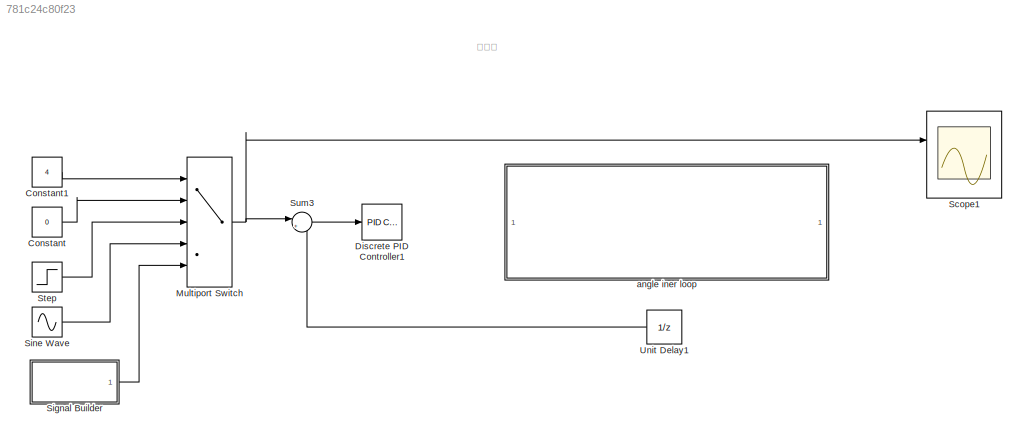
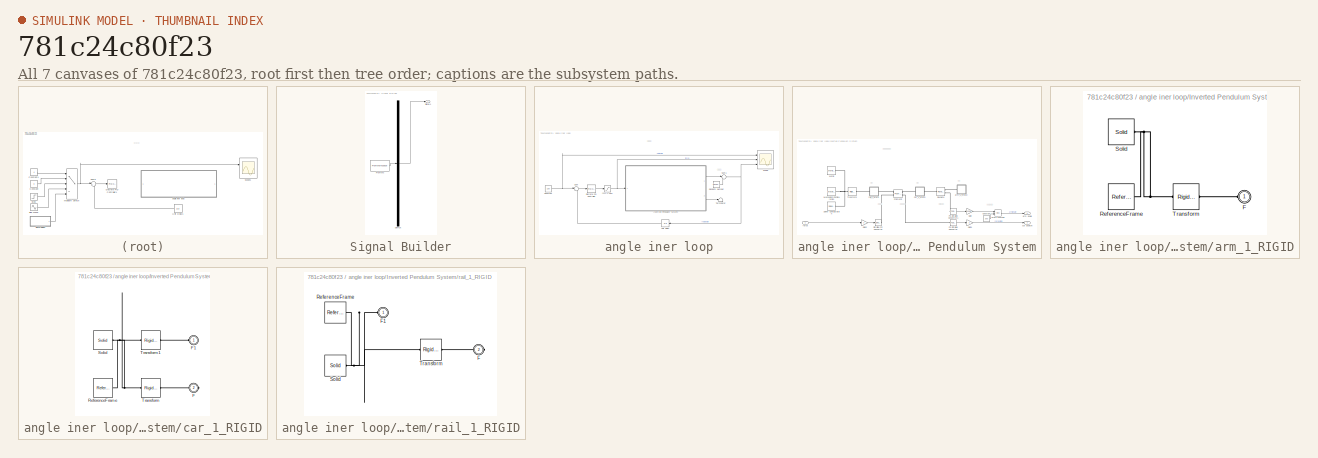
[diagram: thumbnail index - all 7 canvases of the model, root first then tree order]
MODEL slx_781c24c80f23
KIND model
CONFIG AbsTol = auto
CONFIG EnableMultiTasking = off
CONFIG FixedStep = 0.001
CONFIG MaxStep = auto
CONFIG MinStep = auto
CONFIG RelTol = 1e-3
CONFIG SampleTimeConstraint = Unconstrained
CONFIG Solver = ode5
CONFIG SolverName = ode5
CONFIG StartTime = 0.0
CONFIG StopTime = 10
WORKSPACE source: external: MATLAB File  (data not in archive)
BLOCK [Constant] Constant
  Value = 0
BLOCK [Constant] Constant1
  Value = 4
BLOCK [Reference] Discrete PID Controller1  REF=simulink/Continuous/PID Controller
  Ports = [1, 1]
  SourceBlock = simulink/Continuous/PID Controller
  SourceProductBaseCode = SL
  SourceProductName = Simulink
  SourceType = PID 1dof
BLOCK [MultiPortSwitch] Multiport Switch
  InputSameDT = off
  Inputs = 4
  Ports = [5, 1]
  SaturateOnIntegerOverflow = off
BLOCK [Scope] Scope1
  NumInputPorts = 2
  Ports = [2]
  ScopeSpecificationString = Simulink.scopes.TimeScopeBlockCfg('CurrentConfiguration', extmgr.ConfigurationSet(extmgr.Configuration('Core','General UI',true),extmgr.Configuration('Core','Source UI',true),extmgr.Configuration('Sources','WiredSimulink',true,'DataLoggingVariableName','ScopeData1'),extmgr.Configuration('Visuals','Time Domain',true,'SerializedDisplays',{struct('MinYLimReal','-0.02675','MaxYLimReal','0.23075','YLab...<+1996ch>
BLOCK [SubSystem] Signal Builder
  ClipboardFcn = sigbuilder_block('clipboard');
  CloseFcn = sigbuilder_block('close');
  ContinueFcn = sigbuilder_block('continue');
  CopyFcn = sigbuilder_block('copy');
  DeleteFcn = sigbuilder_block('delete');
  LoadFcn = sigbuilder_block('load');
  MaskHideContents = on
  ModelCloseFcn = sigbuilder_block('modelClose');
  NameChangeFcn = sigbuilder_block('namechange');
  OpenFcn = sigbuilder_block('open',[437.6 199.2 550.4 400 ]);
  PauseFcn = sigbuilder_block('pause');
  Ports = [0, 1]
  PreSaveFcn = sigbuilder_block('preSave');
  RequestExecContextInheritance = off
  StartFcn = sigbuilder_block('start');
  StopFcn = sigbuilder_block('stop');
  Tag = STV Subsys
  Variant = off
BLOCK [Demux] Signal Builder/Demux
  Outputs = 1
  Ports = [1, 1]
  Tag = STV Demux
BLOCK [FromWorkspace] Signal Builder/FromWs
  SampleTime = 0
  Tag = STV FromWs
  VariableName = tuvar
  ZeroCross = on
BLOCK [Outport] Signal Builder/Signal 1
  IconDisplay = Port number
  Tag = STV Outport
BLOCK [Sin] Sine Wave
  Amplitude = 0.3
  Frequency = 0.5*2*pi
  Ports = [0, 1]
  SampleTime = 0
BLOCK [Step] Step
  After = 0.2
  SampleTime = 0
  Time = 2
BLOCK [Sum] Sum3
  IconShape = round
  InputSameDT = off
  Inputs = |+-
  OutDataTypeStr = Inherit: Inherit via internal rule
  Ports = [2, 1]
  SaturateOnIntegerOverflow = off
BLOCK [UnitDelay] Unit Delay1
  InputProcessing = Elements as channels (sample based)
  SampleTime = 0.01
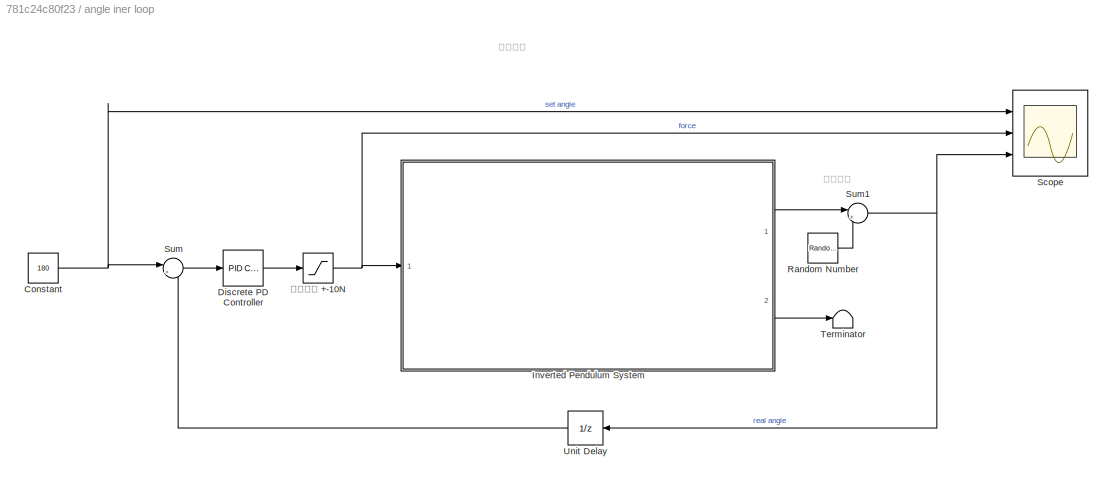
BLOCK [SubSystem] angle iner loop
  Ports = []
  RequestExecContextInheritance = off
  Variant = off
BLOCK [Constant] angle iner loop/Constant
  Value = 180
BLOCK [Reference] angle iner loop/Discrete PD Controller  REF=simulink/Continuous/PID Controller
  Ports = [1, 1]
  SourceBlock = simulink/Continuous/PID Controller
  SourceProductBaseCode = SL
  SourceProductName = Simulink
  SourceType = PID 1dof
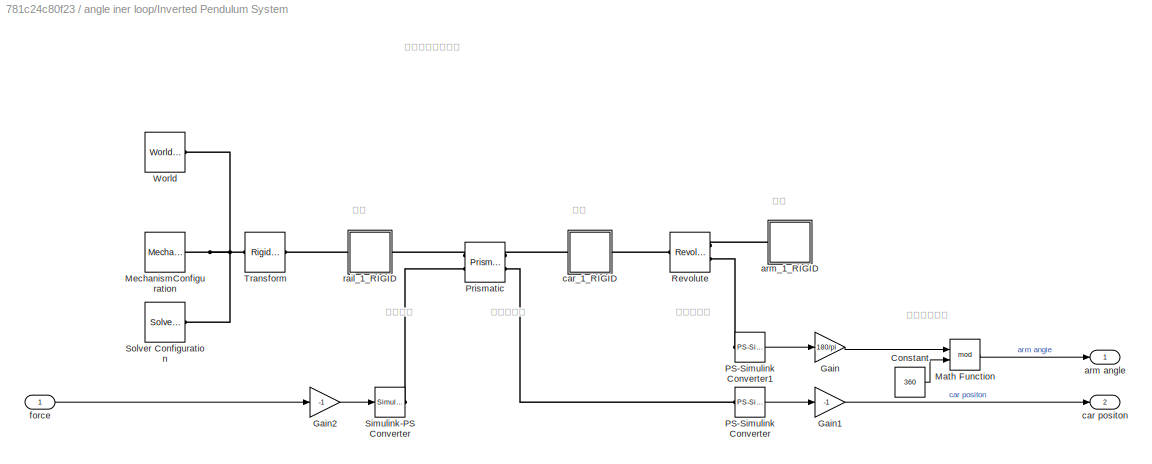
BLOCK [SubSystem] angle iner loop/Inverted Pendulum System
  Ports = [1, 2]
  RequestExecContextInheritance = off
  Variant = off
BLOCK [Constant] angle iner loop/Inverted Pendulum System/Constant
  Value = 360
BLOCK [Gain] angle iner loop/Inverted Pendulum System/Gain
  Gain = 180/pi
  OutDataTypeStr = Inherit: Inherit via internal rule
  ParamDataTypeStr = Inherit: Inherit via internal rule
  SaturateOnIntegerOverflow = off
BLOCK [Gain] angle iner loop/Inverted Pendulum System/Gain1
  Gain = -1
  OutDataTypeStr = Inherit: Inherit via internal rule
  ParamDataTypeStr = Inherit: Inherit via internal rule
  SaturateOnIntegerOverflow = off
BLOCK [Gain] angle iner loop/Inverted Pendulum System/Gain2
  Gain = -1
  OutDataTypeStr = Inherit: Inherit via internal rule
  ParamDataTypeStr = Inherit: Inherit via internal rule
  SaturateOnIntegerOverflow = off
BLOCK [Math] angle iner loop/Inverted Pendulum System/Math Function
  Operator = mod
  Ports = [2, 1]
BLOCK [Reference] angle iner loop/Inverted Pendulum System/MechanismConfiguration  REF=sm_lib/Utilities/Mechanism
Configuration
  Ports = [0, 0, 0, 0, 0, 0, 1]
  SourceBlock = sm_lib/Utilities/Mechanism\nConfiguration
  SourceProductBaseCode = MS
  SourceProductName = Simscape Multibody
  SourceType = Mechanism\nConfiguration
BLOCK [Reference] angle iner loop/Inverted Pendulum System/PS-Simulink Converter  REF=nesl_utility/PS-Simulink
Converter
  Ports = [0, 1, 0, 0, 0, 1]
  SourceBlock = nesl_utility/PS-Simulink\nConverter
  SourceProductBaseCode = SS
  SourceProductName = Simscape
  SourceType = PS-Simulink\nConverter
BLOCK [Reference] angle iner loop/Inverted Pendulum System/PS-Simulink Converter1  REF=nesl_utility/PS-Simulink
Converter
  Ports = [0, 1, 0, 0, 0, 1]
  SourceBlock = nesl_utility/PS-Simulink\nConverter
  SourceProductBaseCode = SS
  SourceProductName = Simscape
  SourceType = PS-Simulink\nConverter
BLOCK [Reference] angle iner loop/Inverted Pendulum System/Prismatic  REF=sm_lib/Joints/Prismatic
Joint
  Ports = [0, 0, 0, 0, 0, 2, 2]
  SourceBlock = sm_lib/Joints/Prismatic\nJoint
  SourceProductBaseCode = MS
  SourceProductName = Simscape Multibody
  SourceType = Prismatic\nJoint
BLOCK [Reference] angle iner loop/Inverted Pendulum System/Revolute  REF=sm_lib/Joints/Revolute Joint
  Ports = [0, 0, 0, 0, 0, 1, 2]
  SourceBlock = sm_lib/Joints/Revolute Joint
  SourceProductBaseCode = MS
  SourceProductName = Simscape Multibody
  SourceType = Revolute Joint
BLOCK [Reference] angle iner loop/Inverted Pendulum System/Simulink-PS Converter  REF=nesl_utility/Simulink-PS
Converter
  Ports = [1, 0, 0, 0, 0, 0, 1]
  SourceBlock = nesl_utility/Simulink-PS\nConverter
  SourceProductBaseCode = SS
  SourceProductName = Simscape
  SourceType = Simulink-PS\nConverter
BLOCK [Reference] angle iner loop/Inverted Pendulum System/Solver Configuration  REF=nesl_utility/Solver
Configuration
  Ports = [0, 0, 0, 0, 0, 0, 1]
  SourceBlock = nesl_utility/Solver\nConfiguration
  SourceProductBaseCode = SS
  SourceProductName = Simscape
  SourceType = Solver\nConfiguration
BLOCK [Reference] angle iner loop/Inverted Pendulum System/Transform  REF=sm_lib/Frames and
Transforms/Rigid
Transform
  Ports = [0, 0, 0, 0, 0, 1, 1]
  SourceBlock = sm_lib/Frames and\nTransforms/Rigid\nTransform
  SourceProductBaseCode = MS
  SourceProductName = Simscape Multibody
  SourceType = Rigid\nTransform
BLOCK [Reference] angle iner loop/Inverted Pendulum System/World  REF=sm_lib/Frames and
Transforms/World Frame
  Ports = [0, 0, 0, 0, 0, 0, 1]
  SourceBlock = sm_lib/Frames and\nTransforms/World Frame
  SourceProductBaseCode = MS
  SourceProductName = Simscape Multibody
  SourceType = World Frame
BLOCK [Outport] angle iner loop/Inverted Pendulum System/arm angle
  IconDisplay = Port number
BLOCK [SubSystem] angle iner loop/Inverted Pendulum System/arm_1_RIGID
  Ports = [0, 0, 0, 0, 0, 1]
  RequestExecContextInheritance = off
  Variant = off
BLOCK [PMIOPort] angle iner loop/Inverted Pendulum System/arm_1_RIGID/F
  Port = 1
  Side = Left
BLOCK [Reference] angle iner loop/Inverted Pendulum System/arm_1_RIGID/ReferenceFrame  REF=sm_lib/Frames and
Transforms/Reference
Frame
  Ports = [0, 0, 0, 0, 0, 0, 1]
  SourceBlock = sm_lib/Frames and\nTransforms/Reference\nFrame
  SourceProductBaseCode = MS
  SourceProductName = Simscape Multibody
  SourceType = Reference\nFrame
BLOCK [Reference] angle iner loop/Inverted Pendulum System/arm_1_RIGID/Solid  REF=sm_lib/Body Elements/Solid
  Ports = [0, 0, 0, 0, 0, 0, 1]
  SourceBlock = sm_lib/Body Elements/Solid
  SourceProductBaseCode = MS
  SourceProductName = Simscape Multibody
  SourceType = Solid
BLOCK [Reference] angle iner loop/Inverted Pendulum System/arm_1_RIGID/Transform  REF=sm_lib/Frames and
Transforms/Rigid
Transform
  Ports = [0, 0, 0, 0, 0, 1, 1]
  SourceBlock = sm_lib/Frames and\nTransforms/Rigid\nTransform
  SourceProductBaseCode = MS
  SourceProductName = Simscape Multibody
  SourceType = Rigid\nTransform
BLOCK [Outport] angle iner loop/Inverted Pendulum System/car positon
  IconDisplay = Port number
  Port = 2
BLOCK [SubSystem] angle iner loop/Inverted Pendulum System/car_1_RIGID
  Ports = [0, 0, 0, 0, 0, 1, 1]
  RequestExecContextInheritance = off
  Variant = off
BLOCK [PMIOPort] angle iner loop/Inverted Pendulum System/car_1_RIGID/F
  Port = 2
  Side = Right
BLOCK [PMIOPort] angle iner loop/Inverted Pendulum System/car_1_RIGID/F1
  Port = 1
  Side = Left
BLOCK [Reference] angle iner loop/Inverted Pendulum System/car_1_RIGID/ReferenceFrame  REF=sm_lib/Frames and
Transforms/Reference
Frame
  Ports = [0, 0, 0, 0, 0, 0, 1]
  SourceBlock = sm_lib/Frames and\nTransforms/Reference\nFrame
  SourceProductBaseCode = MS
  SourceProductName = Simscape Multibody
  SourceType = Reference\nFrame
BLOCK [Reference] angle iner loop/Inverted Pendulum System/car_1_RIGID/Solid  REF=sm_lib/Body Elements/Solid
  Ports = [0, 0, 0, 0, 0, 0, 1]
  SourceBlock = sm_lib/Body Elements/Solid
  SourceProductBaseCode = MS
  SourceProductName = Simscape Multibody
  SourceType = Solid
BLOCK [Reference] angle iner loop/Inverted Pendulum System/car_1_RIGID/Transform  REF=sm_lib/Frames and
Transforms/Rigid
Transform
  Ports = [0, 0, 0, 0, 0, 1, 1]
  SourceBlock = sm_lib/Frames and\nTransforms/Rigid\nTransform
  SourceProductBaseCode = MS
  SourceProductName = Simscape Multibody
  SourceType = Rigid\nTransform
BLOCK [Reference] angle iner loop/Inverted Pendulum System/car_1_RIGID/Transform1  REF=sm_lib/Frames and
Transforms/Rigid
Transform
  Ports = [0, 0, 0, 0, 0, 1, 1]
  SourceBlock = sm_lib/Frames and\nTransforms/Rigid\nTransform
  SourceProductBaseCode = MS
  SourceProductName = Simscape Multibody
  SourceType = Rigid\nTransform
BLOCK [Inport] angle iner loop/Inverted Pendulum System/force
  IconDisplay = Port number
BLOCK [SubSystem] angle iner loop/Inverted Pendulum System/rail_1_RIGID
  Ports = [0, 0, 0, 0, 0, 1, 1]
  RequestExecContextInheritance = off
  Variant = off
BLOCK [PMIOPort] angle iner loop/Inverted Pendulum System/rail_1_RIGID/F
  Port = 2
  Side = Right
BLOCK [PMIOPort] angle iner loop/Inverted Pendulum System/rail_1_RIGID/F1
  Port = 1
  Side = Left
BLOCK [Reference] angle iner loop/Inverted Pendulum System/rail_1_RIGID/ReferenceFrame  REF=sm_lib/Frames and
Transforms/Reference
Frame
  Ports = [0, 0, 0, 0, 0, 0, 1]
  SourceBlock = sm_lib/Frames and\nTransforms/Reference\nFrame
  SourceProductBaseCode = MS
  SourceProductName = Simscape Multibody
  SourceType = Reference\nFrame
BLOCK [Reference] angle iner loop/Inverted Pendulum System/rail_1_RIGID/Solid  REF=sm_lib/Body Elements/Solid
  Ports = [0, 0, 0, 0, 0, 0, 1]
  SourceBlock = sm_lib/Body Elements/Solid
  SourceProductBaseCode = MS
  SourceProductName = Simscape Multibody
  SourceType = Solid
BLOCK [Reference] angle iner loop/Inverted Pendulum System/rail_1_RIGID/Transform  REF=sm_lib/Frames and
Transforms/Rigid
Transform
  Ports = [0, 0, 0, 0, 0, 1, 1]
  SourceBlock = sm_lib/Frames and\nTransforms/Rigid\nTransform
  SourceProductBaseCode = MS
  SourceProductName = Simscape Multibody
  SourceType = Rigid\nTransform
BLOCK [RandomNumber] angle iner loop/Random Number
  SampleTime = 0.005
  Variance = 360/4096
BLOCK [Scope] angle iner loop/Scope
  NumInputPorts = 3
  Ports = [3]
  ScopeSpecificationString = Simulink.scopes.TimeScopeBlockCfg('CurrentConfiguration', extmgr.ConfigurationSet(extmgr.Configuration('Core','General UI',true),extmgr.Configuration('Core','Source UI',true),extmgr.Configuration('Sources','WiredSimulink',true),extmgr.Configuration('Visuals','Time Domain',true,'SerializedDisplays',{struct('MinYLimReal','80.00000','MaxYLimReal','280.00000','YLabelReal','','MinYLimMag','80.00000','M...<+2673ch>
BLOCK [Sum] angle iner loop/Sum
  IconShape = round
  InputSameDT = off
  Inputs = |+-
  OutDataTypeStr = Inherit: Inherit via internal rule
  Ports = [2, 1]
  SaturateOnIntegerOverflow = off
BLOCK [Sum] angle iner loop/Sum1
  IconShape = round
  InputSameDT = off
  Inputs = |++
  OutDataTypeStr = Inherit: Inherit via internal rule
  Ports = [2, 1]
  SaturateOnIntegerOverflow = off
BLOCK [Terminator] angle iner loop/Terminator
BLOCK [UnitDelay] angle iner loop/Unit Delay
  InputProcessing = Elements as channels (sample based)
  SampleTime = 0.005
BLOCK [Saturate] angle iner loop/限幅输出 +-10N
  InputPortMap = u0
  LowerLimit = -10
  Ports = [1, 1]
  UpperLimit = 10
ANNOTATION (root): 位置环
ANNOTATION angle iner loop: 直立内环
ANNOTATION angle iner loop: 测量误差
ANNOTATION angle iner loop/Inverted Pendulum System: 倒立摆的机械模型
ANNOTATION angle iner loop/Inverted Pendulum System: 取余计算角度
ANNOTATION angle iner loop/Inverted Pendulum System: 小车
ANNOTATION angle iner loop/Inverted Pendulum System: 摆臂
ANNOTATION angle iner loop/Inverted Pendulum System: 摆臂的角度
ANNOTATION angle iner loop/Inverted Pendulum System: 施加的力
ANNOTATION angle iner loop/Inverted Pendulum System: 测得的位移
ANNOTATION angle iner loop/Inverted Pendulum System: 滑轨
LINE Constant1:1 -> Multiport Switch:1
LINE Constant:1 -> Multiport Switch:2
NET Multiport Switch:1 -> Scope1:1, Sum3:1
LINE Signal Builder:1 -> Multiport Switch:5
LINE Sine Wave:1 -> Multiport Switch:4
LINE Step:1 -> Multiport Switch:3
LINE Sum3:1 -> Discrete PID Controller1:1
LINE Unit Delay1:1 -> Sum3:2
NET angle iner loop/Constant:1 -> angle iner loop/Scope:1, angle iner loop/Sum:1
LINE angle iner loop/Discrete PD Controller:1 -> angle iner loop/限幅输出 +-10N:1
LINE angle iner loop/Inverted Pendulum System/Constant:1 -> angle iner loop/Inverted Pendulum System/Math Function:2
LINE angle iner loop/Inverted Pendulum System/Gain1:1 -> angle iner loop/Inverted Pendulum System/car positon:1
LINE angle iner loop/Inverted Pendulum System/Gain2:1 -> angle iner loop/Inverted Pendulum System/Simulink-PS Converter:1
LINE angle iner loop/Inverted Pendulum System/Gain:1 -> angle iner loop/Inverted Pendulum System/Math Function:1
LINE angle iner loop/Inverted Pendulum System/Math Function:1 -> angle iner loop/Inverted Pendulum System/arm angle:1
LINE angle iner loop/Inverted Pendulum System/PS-Simulink Converter1:1 -> angle iner loop/Inverted Pendulum System/Gain:1
LINE angle iner loop/Inverted Pendulum System/PS-Simulink Converter:1 -> angle iner loop/Inverted Pendulum System/Gain1:1
LINE angle iner loop/Inverted Pendulum System/force:1 -> angle iner loop/Inverted Pendulum System/Gain2:1
LINE angle iner loop/Inverted Pendulum System:1 -> angle iner loop/Sum1:1
LINE angle iner loop/Inverted Pendulum System:2 -> angle iner loop/Terminator:1
LINE angle iner loop/Random Number:1 -> angle iner loop/Sum1:2
NET angle iner loop/Sum1:1 -> angle iner loop/Scope:3, angle iner loop/Unit Delay:1
LINE angle iner loop/Sum:1 -> angle iner loop/Discrete PD Controller:1
LINE angle iner loop/Unit Delay:1 -> angle iner loop/Sum:2
NET angle iner loop/限幅输出 +-10N:1 -> angle iner loop/Inverted Pendulum System:1, angle iner loop/Scope:2
PNET net1: angle iner loop/Inverted Pendulum System/MechanismConfiguration:RConn1 -- angle iner loop/Inverted Pendulum System/Solver Configuration:RConn1 -- angle iner loop/Inverted Pendulum System/Transform:LConn1 -- angle iner loop/Inverted Pendulum System/World:RConn1
PLINE angle iner loop/Inverted Pendulum System/PS-Simulink Converter1:LConn1 -- angle iner loop/Inverted Pendulum System/Revolute:RConn2
PLINE angle iner loop/Inverted Pendulum System/PS-Simulink Converter:LConn1 -- angle iner loop/Inverted Pendulum System/Prismatic:RConn2
PLINE angle iner loop/Inverted Pendulum System/Prismatic:LConn1 -- angle iner loop/Inverted Pendulum System/rail_1_RIGID:RConn1
PLINE angle iner loop/Inverted Pendulum System/Prismatic:LConn2 -- angle iner loop/Inverted Pendulum System/Simulink-PS Converter:RConn1
PLINE angle iner loop/Inverted Pendulum System/Prismatic:RConn1 -- angle iner loop/Inverted Pendulum System/car_1_RIGID:LConn1
PLINE angle iner loop/Inverted Pendulum System/Revolute:LConn1 -- angle iner loop/Inverted Pendulum System/car_1_RIGID:RConn1
PLINE angle iner loop/Inverted Pendulum System/Revolute:RConn1 -- angle iner loop/Inverted Pendulum System/arm_1_RIGID:LConn1
PLINE angle iner loop/Inverted Pendulum System/Transform:RConn1 -- angle iner loop/Inverted Pendulum System/rail_1_RIGID:LConn1
PLINE angle iner loop/Inverted Pendulum System/arm_1_RIGID/F:RConn1 -- angle iner loop/Inverted Pendulum System/arm_1_RIGID/Transform:RConn1
PNET net2: angle iner loop/Inverted Pendulum System/arm_1_RIGID/ReferenceFrame:RConn1 -- angle iner loop/Inverted Pendulum System/arm_1_RIGID/Solid:RConn1 -- angle iner loop/Inverted Pendulum System/arm_1_RIGID/Transform:LConn1
PLINE angle iner loop/Inverted Pendulum System/car_1_RIGID/F1:RConn1 -- angle iner loop/Inverted Pendulum System/car_1_RIGID/Transform1:RConn1
PLINE angle iner loop/Inverted Pendulum System/car_1_RIGID/F:RConn1 -- angle iner loop/Inverted Pendulum System/car_1_RIGID/Transform:RConn1
PNET net3: angle iner loop/Inverted Pendulum System/car_1_RIGID/ReferenceFrame:RConn1 -- angle iner loop/Inverted Pendulum System/car_1_RIGID/Solid:RConn1 -- angle iner loop/Inverted Pendulum System/car_1_RIGID/Transform1:LConn1 -- angle iner loop/Inverted Pendulum System/car_1_RIGID/Transform:LConn1
PNET net4: angle iner loop/Inverted Pendulum System/rail_1_RIGID/F1:RConn1 -- angle iner loop/Inverted Pendulum System/rail_1_RIGID/ReferenceFrame:RConn1 -- angle iner loop/Inverted Pendulum System/rail_1_RIGID/Solid:RConn1 -- angle iner loop/Inverted Pendulum System/rail_1_RIGID/Transform:LConn1
PLINE angle iner loop/Inverted Pendulum System/rail_1_RIGID/F:RConn1 -- angle iner loop/Inverted Pendulum System/rail_1_RIGID/Transform:RConn1
note: NET lines group one-source signal fan-out (src -> all destinations, sorted); 1:1 wires keep LINE; PNET lines group multi-terminal physical nets as a canonical sorted terminal list (undirected conserving connections); 2-terminal nets keep the pairwise PLINE form
